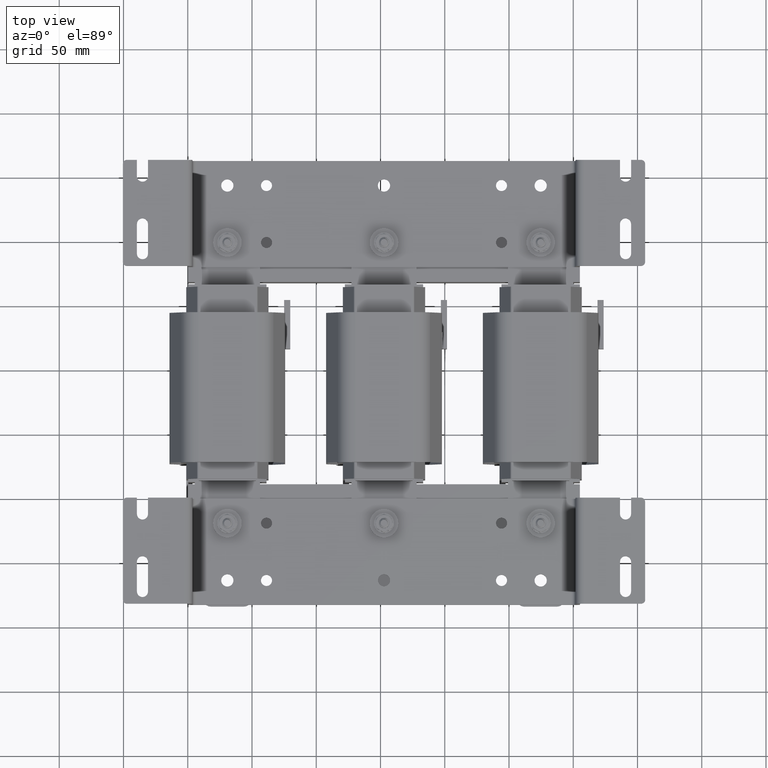
[diagram: clean part render]
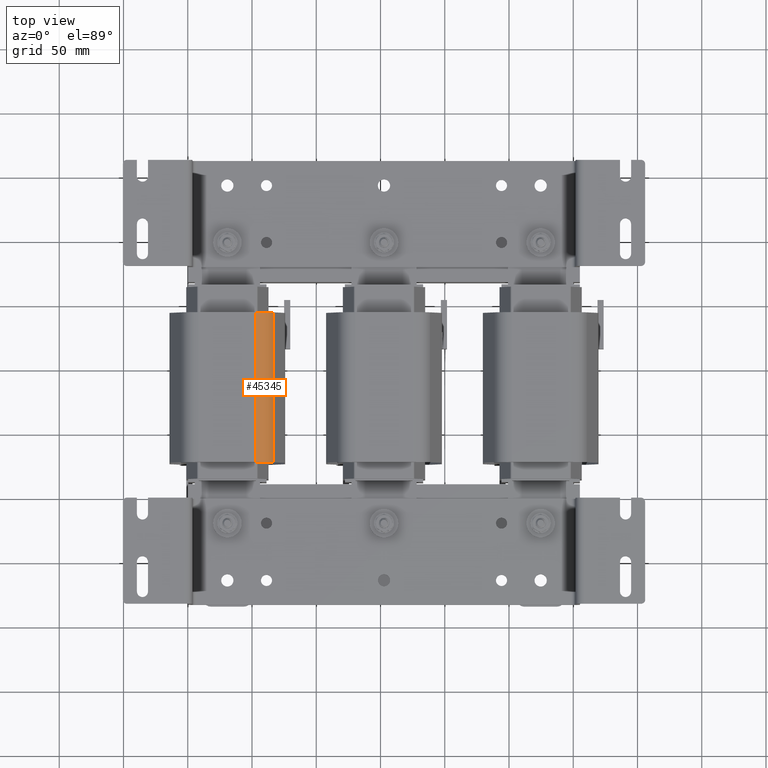
[diagram: same view with one face highlighted and labeled with its STEP entity id]
A machine part, top view. The second image highlights one B-rep face of the part: STEP entity #45345.
In plain terms, the highlighted cylindrical surface (edge-blend (fillet) strip) has radius 14.5288 mm, axis along (0, 1, 0).
Its self-contained STEP definition (entity closure, byte-faithful):
#1000=CYLINDRICAL_SURFACE('',#48822,0.572000000004519);
#2077=CIRCLE('',#48823,0.572000000004519);
#2078=CIRCLE('',#48824,0.572000000004519);
#5945=FACE_OUTER_BOUND('',#8536,.T.);
#8536=EDGE_LOOP('',(#40721,#40722,#40723,#40724));
#12840=LINE('',#78131,#17121);
#12841=LINE('',#78137,#17122);
#17121=VECTOR('',#58350,0.393700787401575);
#17122=VECTOR('',#58357,0.393700787401575);
#22321=VERTEX_POINT('',#78127);
#22322=VERTEX_POINT('',#78129);
#22323=VERTEX_POINT('',#78133);
#22324=VERTEX_POINT('',#78135);
#28572=EDGE_CURVE('',#22321,#22322,#12840,.T.);
#28573=EDGE_CURVE('',#22321,#22323,#2077,.T.);
#28574=EDGE_CURVE('',#22324,#22322,#2078,.T.);
#28575=EDGE_CURVE('',#22323,#22324,#12841,.T.);
#40721=ORIENTED_EDGE('',*,*,#28573,.F.);
#40722=ORIENTED_EDGE('',*,*,#28572,.T.);
#40723=ORIENTED_EDGE('',*,*,#28574,.F.);
#40724=ORIENTED_EDGE('',*,*,#28575,.F.);
#45345=ADVANCED_FACE('',(#5945),#1000,.T.);
#48822=AXIS2_PLACEMENT_3D('',#78132,#58351,#58352);
#48823=AXIS2_PLACEMENT_3D('',#78134,#58353,#58354);
#48824=AXIS2_PLACEMENT_3D('',#78136,#58355,#58356);
#58350=DIRECTION('',(0.,0.,1.));
#58351=DIRECTION('center_axis',(0.,0.,1.));
#58352=DIRECTION('ref_axis',(-1.,-9.93469572517735E-10,0.));
#58353=DIRECTION('center_axis',(0.,0.,-1.));
#58354=DIRECTION('ref_axis',(-1.,-9.93469572517735E-10,0.));
#58355=DIRECTION('center_axis',(0.,0.,1.));
#58356=DIRECTION('ref_axis',(-1.,-9.93469572517735E-10,0.));
#58357=DIRECTION('',(0.,0.,1.));
#78127=CARTESIAN_POINT('',(3.57416269443989,-0.330792744972305,0.));
#78129=CARTESIAN_POINT('',(3.57416269443989,-0.330792744972305,4.59));
#78131=CARTESIAN_POINT('',(3.57416269443989,-0.330792744972305,0.));
#78132=CARTESIAN_POINT('Origin',(3.37499999868436,-0.867000000261302,0.));
#78133=CARTESIAN_POINT('',(3.94699999868888,-0.866999999693038,0.));
#78134=CARTESIAN_POINT('Origin',(3.37499999868436,-0.867000000261302,0.));
#78135=CARTESIAN_POINT('',(3.94699999868888,-0.866999999693038,4.59));
#78136=CARTESIAN_POINT('Origin',(3.37499999868436,-0.867000000261302,4.59));
#78137=CARTESIAN_POINT('',(3.94699999868888,-0.866999999693038,0.));